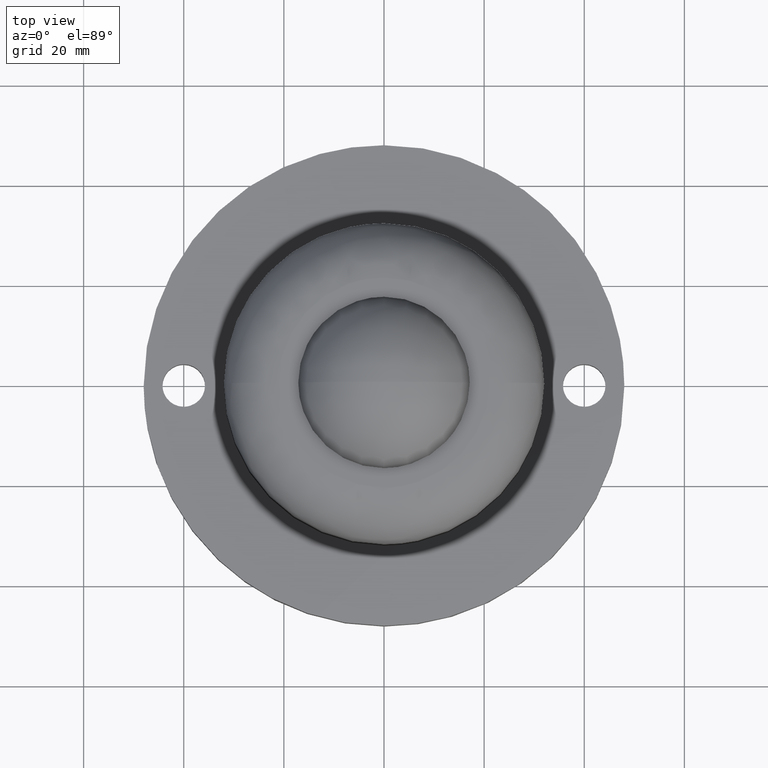
[diagram: clean part render]
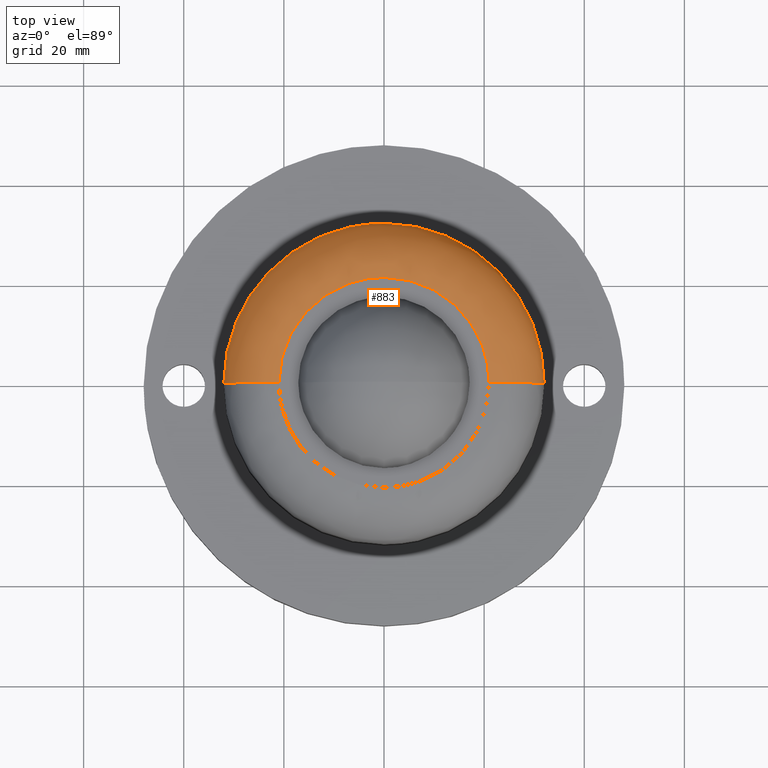
[diagram: same view with one face highlighted and labeled with its STEP entity id]
A machine part, top view. The second image highlights one B-rep face of the part: STEP entity #883.
In plain terms, the highlighted face is a freeform B-spline surface patch.
Its self-contained STEP definition (entity closure, byte-faithful):
#690=CARTESIAN_POINT('',(-20.999997413327261,-2.033978E-015,43.999999999999389));
#691=VERTEX_POINT('',#690);
#708=CARTESIAN_POINT('',(20.999997413327389,1.016989E-015,43.999999999999389));
#709=VERTEX_POINT('',#708);
#726=CARTESIAN_POINT('',(0.000000976113701,20.999999999999979,43.999999999999389));
#727=VERTEX_POINT('',#726);
#728=CARTESIAN_POINT('',(0.000000976113701,20.999999999999979,43.999999999999389));
#729=CARTESIAN_POINT('',(1.460366925572225,21.000232798582800,43.999999999999297));
#730=CARTESIAN_POINT('',(3.736684287279631,20.761535261364418,43.999999999999531));
#731=CARTESIAN_POINT('',(6.807757481173177,19.921737693853810,43.999999999999481));
#732=CARTESIAN_POINT('',(9.117017993333674,18.973499203862211,43.999999999999112));
#733=CARTESIAN_POINT('',(11.445610019982061,17.673169363311700,44.000000000000121));
#734=CARTESIAN_POINT('',(13.906796095068520,15.859676946575551,43.999999999998501));
#735=CARTESIAN_POINT('',(16.437193671314759,13.266442725840140,44.000000000000277));
#736=CARTESIAN_POINT('',(18.369893587867480,10.354654540509300,43.999999999998650));
#737=CARTESIAN_POINT('',(19.588290899826511,7.694142514825798,43.999999999999403));
#738=CARTESIAN_POINT('',(20.417063173593331,5.159582473725370,44.000000000000703));
#739=CARTESIAN_POINT('',(20.897937564332619,2.620044630768458,43.999999999996042));
#740=CARTESIAN_POINT('',(21.000006408142831,0.773124915305567,44.000000000001471));
#741=CARTESIAN_POINT('',(20.999997413327389,1.016989E-015,43.999999999999389));
#742=B_SPLINE_CURVE_WITH_KNOTS('',3,(#728,#729,#730,#731,#732,#733,#734,#735,#736,#737,#738,#739,#740,#741),.UNSPECIFIED.,.F.,.U.,(4,1,1,1,1,1,1,1,1,1,1,4),(0.000000078380978,4.381036461371231,6.829284180635796,9.535242133090222,11.854627932994291,14.818284979713200,18.683876003313390,22.678404702554658,25.255498316943751,27.446025846667990,30.667389691046029,32.986771453957907),.UNSPECIFIED.);
#743=EDGE_CURVE('',#727,#709,#742,.T.);
#745=CARTESIAN_POINT('',(-20.999997413327261,-2.033978E-015,43.999999999999389));
#746=CARTESIAN_POINT('',(-21.000170613297080,1.374454785821667,43.999999999999353));
#747=CARTESIAN_POINT('',(-20.754536111331120,3.865574468733140,43.999999999999567));
#748=CARTESIAN_POINT('',(-19.791289486999450,7.264982566503417,43.999999999999183));
#749=CARTESIAN_POINT('',(-18.535813092391201,10.005892890242579,43.999999999999403));
#750=CARTESIAN_POINT('',(-16.947273112802581,12.514487165314870,43.999999999999332));
#751=CARTESIAN_POINT('',(-15.165783802666160,14.618585451002639,43.999999999999389));
#752=CARTESIAN_POINT('',(-13.119826755599250,16.461467099828180,43.999999999999567));
#753=CARTESIAN_POINT('',(-11.044071330573511,17.923396802160820,43.999999999999403));
#754=CARTESIAN_POINT('',(-8.691100341628147,19.181088006667249,43.999999999998757));
#755=CARTESIAN_POINT('',(-6.195037666230667,20.126384592064952,43.999999999999943));
#756=CARTESIAN_POINT('',(-3.264275458823571,20.822382849048392,43.999999999999659));
#757=CARTESIAN_POINT('',(-1.202645617127831,21.000103447201621,43.999999999998273));
#758=CARTESIAN_POINT('',(0.000000976113701,20.999999999999979,43.999999999999389));
#759=B_SPLINE_CURVE_WITH_KNOTS('',3,(#745,#746,#747,#748,#749,#750,#751,#752,#753,#754,#755,#756,#757,#758),.UNSPECIFIED.,.F.,.U.,(4,1,1,1,1,1,1,1,1,1,1,4),(0.000000078285183,4.123339936132389,7.473561484012986,10.566082011300461,13.143168683453061,16.364578616305440,18.812768166599991,21.389857685113949,23.966950551555762,26.801753419301040,29.378848756912681,32.986772554267098),.UNSPECIFIED.);
#760=EDGE_CURVE('',#691,#727,#759,.T.);
#773=CARTESIAN_POINT('',(-20.237140498162962,-0.565764428540427,43.973515634492756));
#774=CARTESIAN_POINT('',(-20.237140498162958,-0.284529649463936,43.973515634492749));
#775=CARTESIAN_POINT('',(-20.237140498162947,20.237140498162947,43.973515634492763));
#776=CARTESIAN_POINT('',(-4.956506E-015,20.237140498162955,43.973515634492756));
#777=CARTESIAN_POINT('',(20.237140498162947,20.237140498162947,43.973515634492763));
#778=CARTESIAN_POINT('',(20.237140498162958,-0.284529649463928,43.973515634492749));
#779=CARTESIAN_POINT('',(20.237140498162958,-0.565764428540422,43.973515634492756));
#780=CARTESIAN_POINT('',(-32.855147045798830,-0.918522727786836,44.850697251553527));
#781=CARTESIAN_POINT('',(-32.855147045798816,-0.461935987096388,44.850697251553520));
#782=CARTESIAN_POINT('',(-32.855147045798823,32.855147045798823,44.850697251553513));
#783=CARTESIAN_POINT('',(-8.046924E-015,32.855147045798830,44.850697251553527));
#784=CARTESIAN_POINT('',(32.855147045798823,32.855147045798823,44.850697251553513));
#785=CARTESIAN_POINT('',(32.855147045798816,-0.461935987096376,44.850697251553520));
#786=CARTESIAN_POINT('',(32.855147045798823,-0.918522727786828,44.850697251553513));
#787=CARTESIAN_POINT('',(-31.973228470411577,-0.893867161509157,32.233020902404355));
#788=CARTESIAN_POINT('',(-31.973228470411577,-0.449536410034923,32.233020902404355));
#789=CARTESIAN_POINT('',(-31.973228470411581,31.973228470411566,32.233020902404370));
#790=CARTESIAN_POINT('',(-7.830924E-015,31.973228470411577,32.233020902404363));
#791=CARTESIAN_POINT('',(31.973228470411566,31.973228470411581,32.233020902404370));
#792=CARTESIAN_POINT('',(31.973228470411573,-0.449536410034911,32.233020902404363));
#793=CARTESIAN_POINT('',(31.973228470411573,-0.893867161509149,32.233020902404370));
#801=(BOUNDED_SURFACE()B_SPLINE_SURFACE(2,2,((#773,#780,#787),(#774,#781,#788),(#775,#782,#789),(#776,#783,#790),(#777,#784,#791),(#778,#785,#792),(#779,#786,#793)),.UNSPECIFIED.,.F.,.F.,.U.)B_SPLINE_SURFACE_WITH_KNOTS((3,1,2,1,3),(3,3),(0.0,1.059499589223845,54.034479050416031,107.009458511608200,108.068958100832110),(0.0,20.050018219232712),.UNSPECIFIED.)GEOMETRIC_REPRESENTATION_ITEM()RATIONAL_B_SPLINE_SURFACE(((0.926697961417239,0.606435180617700,0.921565211971852),(0.921332352460620,0.602923902755650,0.916229321788277),(0.647686295673038,0.423848731791093,0.644098922425970),(0.915966743504001,0.599412624893600,0.910893431604703),(0.647686295673038,0.423848731791093,0.644098922425970),(0.921332352460620,0.602923902755650,0.916229321788277),(0.926697961417239,0.606435180617701,0.921565211971852)))REPRESENTATION_ITEM('')SURFACE());
#802=CARTESIAN_POINT('',(-31.999999999986311,-3.502005E-015,32.999987729900710));
#803=VERTEX_POINT('',#802);
#804=CARTESIAN_POINT('',(-20.999997413327261,-2.033978E-015,43.999999999999389));
#805=CARTESIAN_POINT('',(-21.764946092334959,-2.139082E-015,44.000126715913410));
#806=CARTESIAN_POINT('',(-23.069798107773209,-2.317827E-015,43.863297709735058));
#807=CARTESIAN_POINT('',(-24.933159696576581,-2.571721E-015,43.322952911268217));
#808=CARTESIAN_POINT('',(-26.443751557891421,-2.776458E-015,42.608480803027803));
#809=CARTESIAN_POINT('',(-27.862812681761909,-2.967647E-015,41.647618434263407));
#810=CARTESIAN_POINT('',(-29.259830987355478,-3.154544E-015,40.365910179565603));
#811=CARTESIAN_POINT('',(-30.419442901801759,-3.307709E-015,38.802334662826702));
#812=CARTESIAN_POINT('',(-31.329757438926269,-3.425433E-015,36.937086975131130));
#813=CARTESIAN_POINT('',(-31.871265535400230,-3.492475E-015,35.069826639520151));
#814=CARTESIAN_POINT('',(-32.000057363485517,-3.504673E-015,33.674933945191071));
#815=CARTESIAN_POINT('',(-31.999999999986311,-3.502005E-015,32.999987729900710));
#816=B_SPLINE_CURVE_WITH_KNOTS('',3,(#804,#805,#806,#807,#808,#809,#810,#811,#812,#813,#814,#815),.UNSPECIFIED.,.F.,.U.,(4,1,1,1,1,1,1,1,1,4),(0.000000065254437,2.294828475809483,3.914745925073241,5.804638420121441,7.289527651536217,9.044371080861195,11.474235051414659,13.094149139515210,15.254030237989660,17.278876385191381),.UNSPECIFIED.);
#817=EDGE_CURVE('',#691,#803,#816,.T.);
#818=ORIENTED_EDGE('',*,*,#817,.F.);
#819=ORIENTED_EDGE('',*,*,#760,.T.);
#820=ORIENTED_EDGE('',*,*,#743,.T.);
#821=CARTESIAN_POINT('',(31.999999999986311,1.751002E-015,32.999987729901001));
#822=VERTEX_POINT('',#821);
#823=CARTESIAN_POINT('',(20.999997413327389,1.016989E-015,43.999999999999389));
#824=CARTESIAN_POINT('',(22.079983170216451,1.091184E-015,44.000510024336897));
#825=CARTESIAN_POINT('',(23.834544317193370,1.211207E-015,43.739359189556318));
#826=CARTESIAN_POINT('',(26.094617386635370,1.364659E-015,42.819331782080468));
#827=CARTESIAN_POINT('',(27.881960418326479,1.485187E-015,41.672134004365702));
#828=CARTESIAN_POINT('',(29.315221112076969,1.580929E-015,40.290693387609977));
#829=CARTESIAN_POINT('',(30.345927501103450,1.648927E-015,38.864506483108443));
#830=CARTESIAN_POINT('',(31.111007717660549,1.698666E-015,37.433203375362169));
#831=CARTESIAN_POINT('',(31.795765562385711,1.741938E-015,35.519687364335688));
#832=CARTESIAN_POINT('',(32.000288530546570,1.752885E-015,33.944941988665327));
#833=CARTESIAN_POINT('',(31.999999999986311,1.751002E-015,32.999987729901001));
#834=B_SPLINE_CURVE_WITH_KNOTS('',3,(#823,#824,#825,#826,#827,#828,#829,#830,#831,#832,#833),.UNSPECIFIED.,.F.,.U.,(4,1,1,1,1,1,1,1,4),(0.000000065256945,3.239777431426022,5.264666412598473,7.289527651536275,9.584347239959838,11.204254356088770,12.554178746507510,14.444079576371090,17.278876385191140),.UNSPECIFIED.);
#835=EDGE_CURVE('',#709,#822,#834,.T.);
#836=ORIENTED_EDGE('',*,*,#835,.T.);
#837=CARTESIAN_POINT('',(0.000001200578397,31.999999999999979,32.999987729900852));
#838=VERTEX_POINT('',#837);
#839=CARTESIAN_POINT('',(0.000001200578397,31.999999999999979,32.999987729900852));
#840=CARTESIAN_POINT('',(1.243545933864249,32.000027686290437,32.999987729900802));
#841=CARTESIAN_POINT('',(3.926985982258654,31.843403373049199,32.999987729900937));
#842=CARTESIAN_POINT('',(8.118901102339510,31.063015851764380,32.999987729900909));
#843=CARTESIAN_POINT('',(12.720821336361400,29.511403242763301,32.999987729900951));
#844=CARTESIAN_POINT('',(16.847604723427882,27.338062793029771,32.999987729900397));
#845=CARTESIAN_POINT('',(20.505664823581530,24.676734177825558,32.999987729901427));
#846=CARTESIAN_POINT('',(23.659619054415209,21.710687191173779,32.999987729900617));
#847=CARTESIAN_POINT('',(26.805970803443969,17.754875717246090,32.999987729901171));
#848=CARTESIAN_POINT('',(29.214600667731780,13.378631801025341,32.999987729900951));
#849=CARTESIAN_POINT('',(30.729771445561180,9.184042836501583,32.999987729900973));
#850=CARTESIAN_POINT('',(31.731307148809851,4.908668987190709,32.999987729901122));
#851=CARTESIAN_POINT('',(32.000177443627791,1.898057733687433,32.999987729900923));
#852=CARTESIAN_POINT('',(31.999999999986311,1.751002E-015,32.999987729901001));
#853=B_SPLINE_CURVE_WITH_KNOTS('',3,(#839,#840,#841,#842,#843,#844,#845,#846,#847,#848,#849,#850,#851,#852),.UNSPECIFIED.,.F.,.U.,(4,1,1,1,1,1,1,1,1,1,1,4),(0.000000059490198,3.730641181501298,8.050337676145482,12.762741478385861,18.260537489235571,21.991185462595649,26.310831705121149,31.219625673966689,37.110121125184321,41.233483651612488,44.571424372436752,50.265560632708556),.UNSPECIFIED.);
#854=EDGE_CURVE('',#838,#822,#853,.T.);
#855=ORIENTED_EDGE('',*,*,#854,.F.);
#856=CARTESIAN_POINT('',(-23.211979667101119,22.027346203090371,32.999987729899402));
#857=VERTEX_POINT('',#856);
#858=CARTESIAN_POINT('',(-23.211979667101119,22.027346203090371,32.999987729899402));
#859=CARTESIAN_POINT('',(-22.141287610224861,23.155744639412781,32.999987729899459));
#860=CARTESIAN_POINT('',(-20.235954420431529,24.890603156129021,32.999987729899573));
#861=CARTESIAN_POINT('',(-16.759838030516139,27.362894394207139,32.999987729899772));
#862=CARTESIAN_POINT('',(-13.410097302114959,29.155518530625180,32.999987729900113));
#863=CARTESIAN_POINT('',(-9.292722674067973,30.711942111646529,32.999987729900077));
#864=CARTESIAN_POINT('',(-5.004711051205183,31.736766049744020,32.999987729900589));
#865=CARTESIAN_POINT('',(-1.690789872268687,32.000090896721957,32.999987729900631));
#866=CARTESIAN_POINT('',(0.000001200578397,31.999999999999979,32.999987729900852));
#867=B_SPLINE_CURVE_WITH_KNOTS('',3,(#858,#859,#860,#861,#862,#863,#864,#865,#866),.UNSPECIFIED.,.F.,.U.,(4,1,1,1,1,1,4),(0.000000017193727,4.666574535121569,7.710005682946637,12.782395724301090,16.028680193212601,20.898175172383869,25.970543867658691),.UNSPECIFIED.);
#868=EDGE_CURVE('',#857,#838,#867,.T.);
#869=ORIENTED_EDGE('',*,*,#868,.F.);
#870=CARTESIAN_POINT('',(-31.999999999986311,-3.502005E-015,32.999987729900710));
#871=CARTESIAN_POINT('',(-32.000123657495820,1.708247174777304,32.999987729900432));
#872=CARTESIAN_POINT('',(-31.761294798825929,4.681816467675262,32.999987729900710));
#873=CARTESIAN_POINT('',(-30.754086142089200,9.197562946077358,32.999987729900099));
#874=CARTESIAN_POINT('',(-29.206457528460440,13.361188404306640,32.999987729899729));
#875=CARTESIAN_POINT('',(-26.724517056942741,17.859649025212072,32.999987729899857));
#876=CARTESIAN_POINT('',(-24.562212486051109,20.604791163184810,32.999987729899338));
#877=CARTESIAN_POINT('',(-23.211979667101119,22.027346203090371,32.999987729899402));
#878=B_SPLINE_CURVE_WITH_KNOTS('',3,(#870,#871,#872,#873,#874,#875,#876,#877),.UNSPECIFIED.,.F.,.U.,(4,1,1,1,1,4),(0.000000015660500,5.124729688280517,8.920838670288161,13.855734277039060,18.411069375794050,24.295018669714690),.UNSPECIFIED.);
#879=EDGE_CURVE('',#803,#857,#878,.T.);
#880=ORIENTED_EDGE('',*,*,#879,.F.);
#881=EDGE_LOOP('',(#818,#819,#820,#836,#855,#869,#880));
#882=FACE_OUTER_BOUND('',#881,.T.);
#883=ADVANCED_FACE('',(#882),#801,.T.);